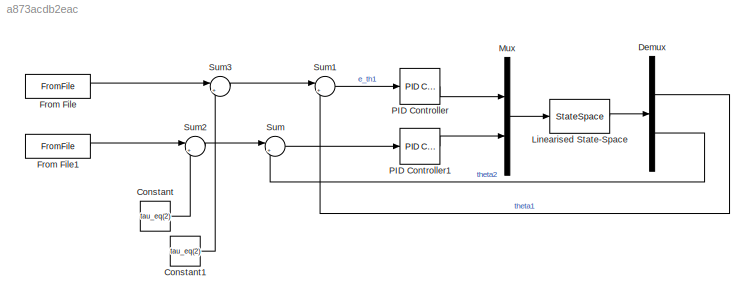
MODEL slx_a873acdb2eac
KIND model
CONFIG AbsTol = auto
CONFIG EnableMultiTasking = off
CONFIG FixedStep = auto
CONFIG MaxStep = auto
CONFIG MinStep = auto
CONFIG RelTol = 1e-3
CONFIG SampleTimeConstraint = Unconstrained
CONFIG SolverName = VariableStepAuto
CONFIG StartTime = 0.0
CONFIG StopTime = 20
BLOCK [Constant] Constant
  Value = tau_eq(2)
BLOCK [Constant] Constant1
  Value = tau_eq(2)
BLOCK [Demux] Demux
  Outputs = 2
BLOCK [FromFile] From File
  FileName = ref_th1.mat
  SampleTime = 0
BLOCK [FromFile] From File1
  FileName = ref_th2.mat
  SampleTime = 0
BLOCK [StateSpace] Linearised State-Space
  A = A
  B = B
  C = [1 0 0 0; 0 1 0 0]
  D = [0 0; 0 0]
  InitialCondition = 0
BLOCK [Mux] Mux
  DisplayOption = bar
  Inputs = 2
BLOCK [Reference] PID Controller  REF=slpidlib/PID Controller
  LibrarySourceBlock = simulink/Continuous/PID Controller
  SourceBlock = slpidlib/PID Controller
  SourceType = PID 1dof
BLOCK [Reference] PID Controller1  REF=slpidlib/PID Controller
  LibrarySourceBlock = simulink/Continuous/PID Controller
  SourceBlock = slpidlib/PID Controller
  SourceType = PID 1dof
BLOCK [Sum] Sum
  Inputs = |+-
BLOCK [Sum] Sum1
  Inputs = |+-
BLOCK [Sum] Sum2
  Inputs = |++
BLOCK [Sum] Sum3
  Inputs = |++
LINE Constant1:1 -> Sum3:2
LINE Constant:1 -> Sum2:2
LINE Demux:1 -> Sum1:2
LINE Demux:2 -> Sum:2
LINE From File1:1 -> Sum2:1
LINE From File:1 -> Sum3:1
LINE Linearised State-Space:1 -> Demux:1
LINE Mux:1 -> Linearised State-Space:1
LINE PID Controller1:1 -> Mux:2
LINE PID Controller:1 -> Mux:1
LINE Sum1:1 -> PID Controller:1
LINE Sum2:1 -> Sum:1
LINE Sum3:1 -> Sum1:1
LINE Sum:1 -> PID Controller1:1
